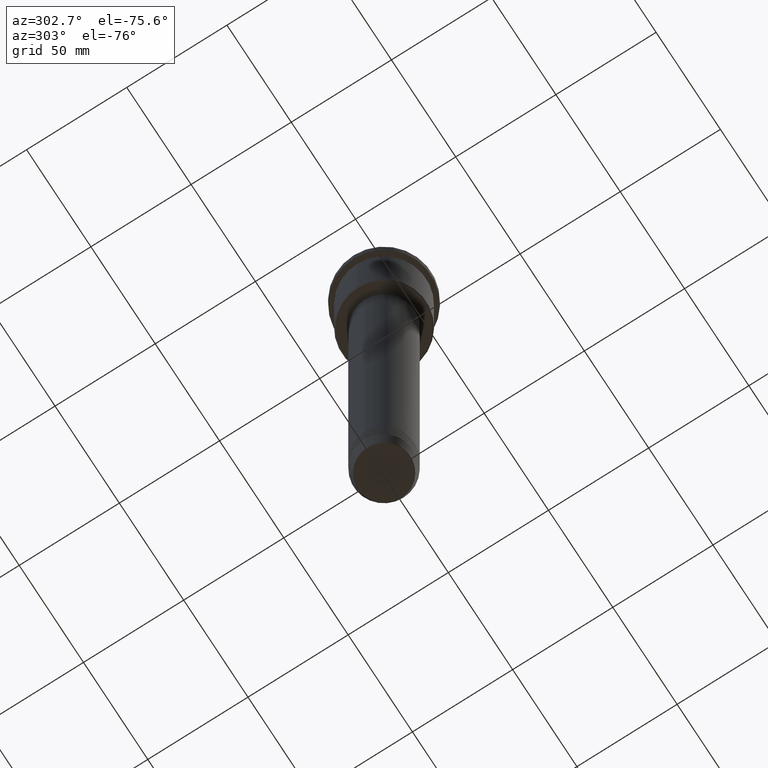
[diagram: clean part render]
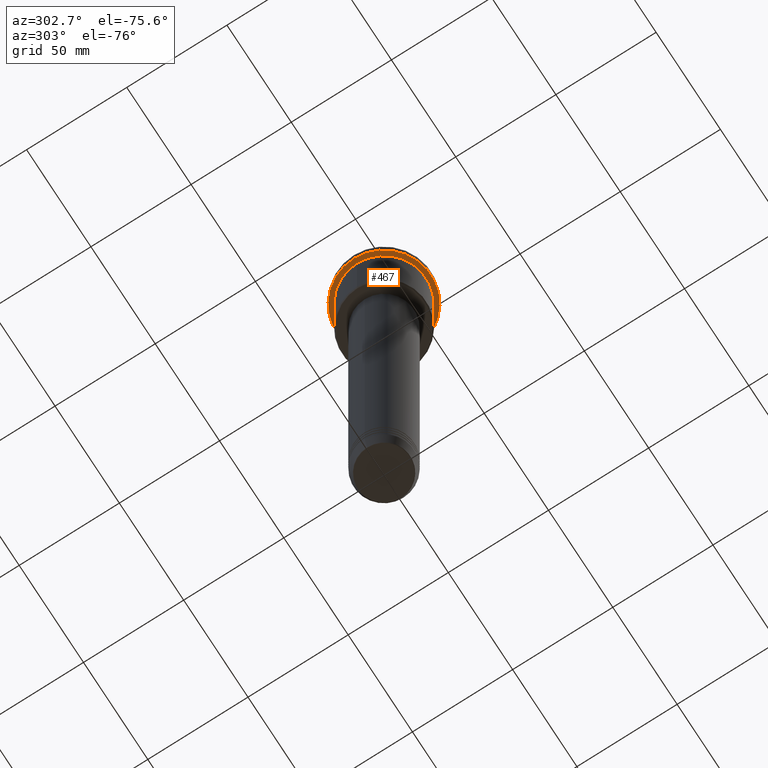
[diagram: same view with one face highlighted and labeled with its STEP entity id]
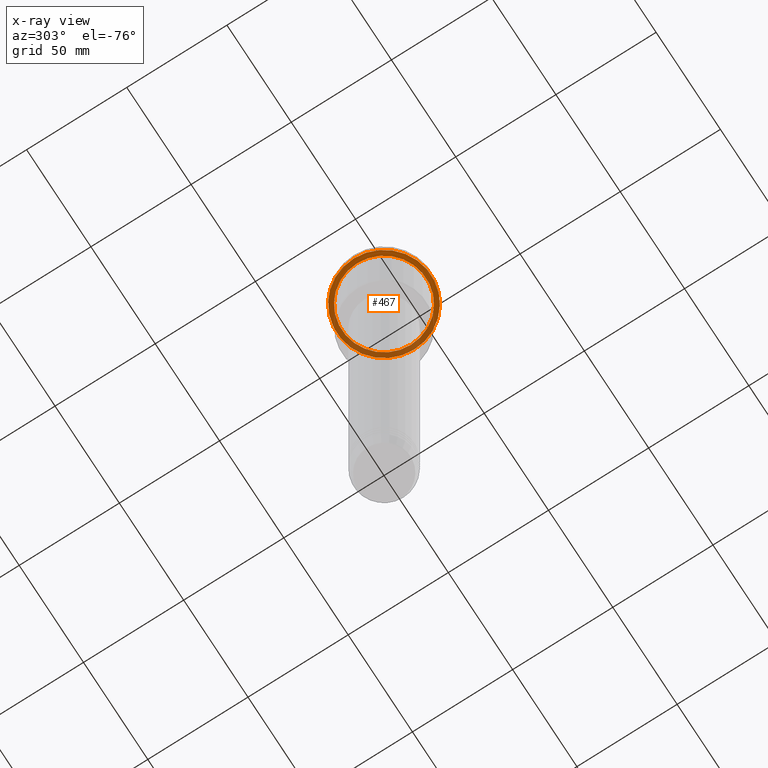
[diagram: x-ray of the same camera — body ghosted, the highlighted face saturated]
A machine part, auxiliary view. The second image highlights one B-rep face of the part: STEP entity #467.
The next image is the same camera in x-ray: the body ghosted, the highlighted face saturated — about 40% of this face is hidden behind the body in this view.
In plain terms, the highlighted planar face has unit normal (0, 0, -1).
Its self-contained STEP definition (entity closure, byte-faithful):
#59 = VERTEX_POINT ( 'NONE', #456 ) ;
#113 = ORIENTED_EDGE ( 'NONE', *, *, #307, .T. ) ;
#118 = FACE_OUTER_BOUND ( 'NONE', #361, .T. ) ;
#125 = VERTEX_POINT ( 'NONE', #339 ) ;
#218 = DIRECTION ( 'NONE',  ( -0.000000000000000000, -0.000000000000000000, 1.000000000000000000 ) ) ;
#221 = EDGE_LOOP ( 'NONE', ( #113, #1003 ) ) ;
#237 = EDGE_CURVE ( 'NONE', #59, #1250, #838, .T. ) ;
#290 = ORIENTED_EDGE ( 'NONE', *, *, #237, .F. ) ;
#307 = EDGE_CURVE ( 'NONE', #678, #125, #1324, .T. ) ;
#315 = CARTESIAN_POINT ( 'NONE',  ( 0.000000000000000000, 0.000000000000000000, -15.00000000000000178 ) ) ;
#339 = CARTESIAN_POINT ( 'NONE',  ( 20.99999999999999289, 2.571758278209440872E-15, -15.00000000000000178 ) ) ;
#344 = FACE_BOUND ( 'NONE', #221, .T. ) ;
#361 = EDGE_LOOP ( 'NONE', ( #787, #290 ) ) ;
#456 = CARTESIAN_POINT ( 'NONE',  ( -23.50000000000000711, 2.877919977996281109E-15, -15.00000000000000000 ) ) ;
#459 = EDGE_CURVE ( 'NONE', #1250, #59, #564, .T. ) ;
#467 = ADVANCED_FACE ( 'NONE', ( #344, #118 ), #1118, .T. ) ;
#522 = DIRECTION ( 'NONE',  ( -1.000000000000000000, 0.000000000000000000, 0.000000000000000000 ) ) ;
#546 = DIRECTION ( 'NONE',  ( -1.000000000000000000, 0.000000000000000000, 0.000000000000000000 ) ) ;
#564 = CIRCLE ( 'NONE', #992, 23.50000000000000355 ) ;
#573 = CARTESIAN_POINT ( 'NONE',  ( 23.50000000000000355, 0.000000000000000000, -15.00000000000000000 ) ) ;
#637 = CARTESIAN_POINT ( 'NONE',  ( 0.000000000000000000, 0.000000000000000000, -15.00000000000000000 ) ) ;
#663 = DIRECTION ( 'NONE',  ( -1.000000000000000000, 0.000000000000000000, -0.000000000000000000 ) ) ;
#669 = CARTESIAN_POINT ( 'NONE',  ( 0.000000000000000000, 0.000000000000000000, -15.00000000000000000 ) ) ;
#678 = VERTEX_POINT ( 'NONE', #846 ) ;
#782 = CARTESIAN_POINT ( 'NONE',  ( 0.000000000000000000, 23.50000000000000355, -15.00000000000000178 ) ) ;
#787 = ORIENTED_EDGE ( 'NONE', *, *, #459, .F. ) ;
#838 = CIRCLE ( 'NONE', #1022, 23.50000000000000355 ) ;
#846 = CARTESIAN_POINT ( 'NONE',  ( -20.99999999999999289, 0.000000000000000000, -15.00000000000000178 ) ) ;
#888 = DIRECTION ( 'NONE',  ( -0.000000000000000000, -0.000000000000000000, 1.000000000000000000 ) ) ;
#992 = AXIS2_PLACEMENT_3D ( 'NONE', #669, #888, #1203 ) ;
#1003 = ORIENTED_EDGE ( 'NONE', *, *, #1124, .T. ) ;
#1022 = AXIS2_PLACEMENT_3D ( 'NONE', #637, #1169, #1394 ) ;
#1079 = CARTESIAN_POINT ( 'NONE',  ( 0.000000000000000000, 0.000000000000000000, -15.00000000000000178 ) ) ;
#1107 = DIRECTION ( 'NONE',  ( 0.000000000000000000, 0.000000000000000000, -1.000000000000000000 ) ) ;
#1115 = AXIS2_PLACEMENT_3D ( 'NONE', #1079, #218, #546 ) ;
#1118 = PLANE ( 'NONE',  #1369 ) ;
#1124 = EDGE_CURVE ( 'NONE', #125, #678, #1392, .T. ) ;
#1169 = DIRECTION ( 'NONE',  ( -0.000000000000000000, -0.000000000000000000, 1.000000000000000000 ) ) ;
#1189 = DIRECTION ( 'NONE',  ( -0.000000000000000000, -0.000000000000000000, 1.000000000000000000 ) ) ;
#1203 = DIRECTION ( 'NONE',  ( 1.000000000000000000, 0.000000000000000000, 0.000000000000000000 ) ) ;
#1250 = VERTEX_POINT ( 'NONE', #573 ) ;
#1300 = AXIS2_PLACEMENT_3D ( 'NONE', #315, #1189, #522 ) ;
#1324 = CIRCLE ( 'NONE', #1115, 20.99999999999999289 ) ;
#1369 = AXIS2_PLACEMENT_3D ( 'NONE', #782, #1107, #663 ) ;
#1392 = CIRCLE ( 'NONE', #1300, 20.99999999999999289 ) ;
#1394 = DIRECTION ( 'NONE',  ( 1.000000000000000000, 0.000000000000000000, 0.000000000000000000 ) ) ;